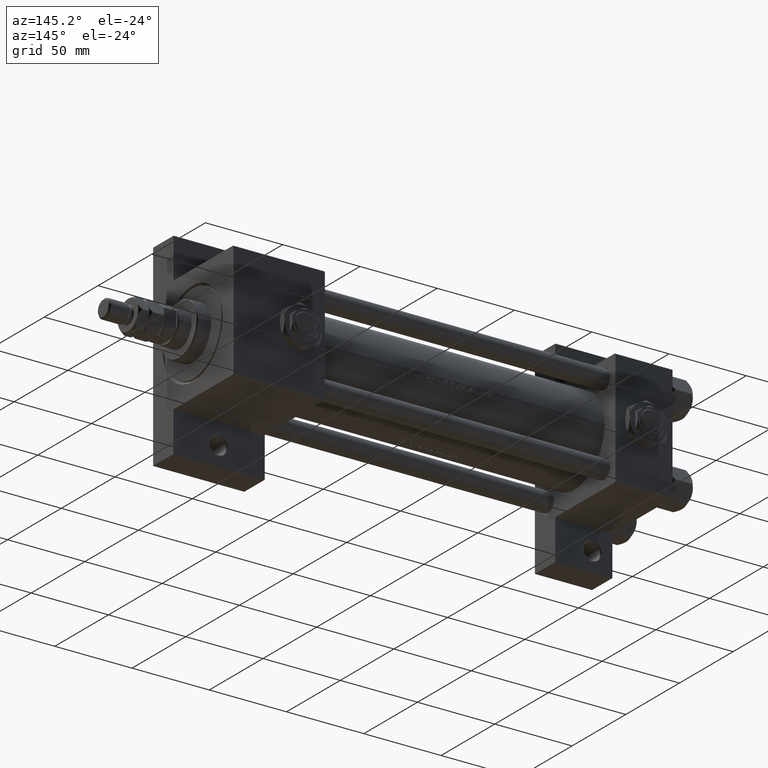
[diagram: clean part render]
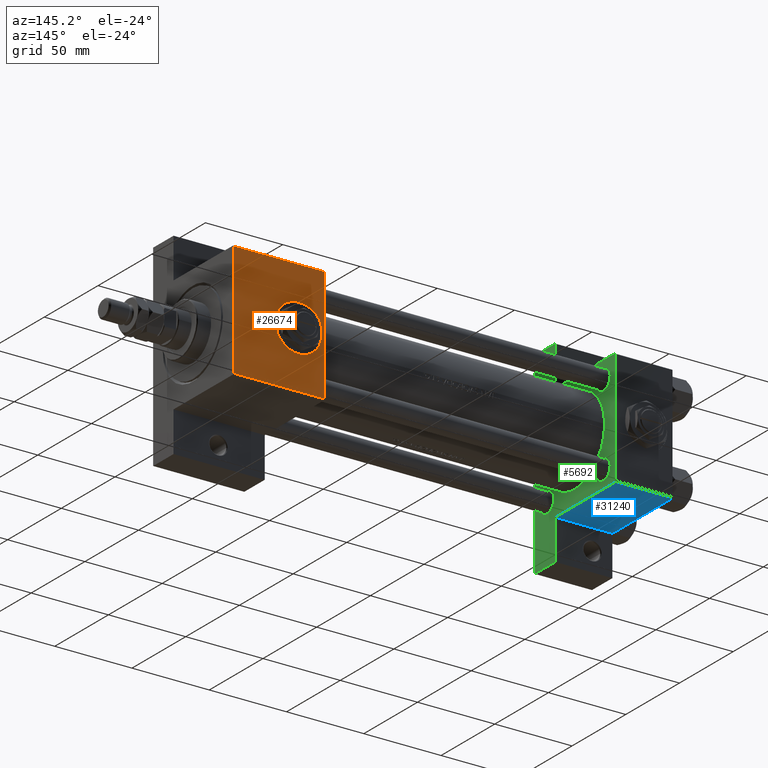
[diagram: same view with three faces highlighted in distinct colors, each labeled with its STEP entity id]
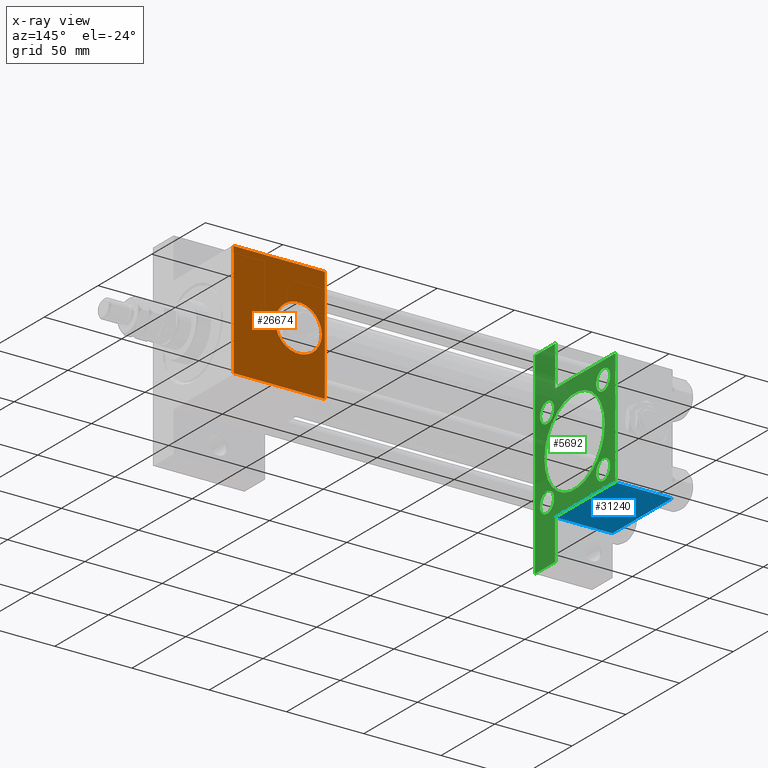
[diagram: x-ray of the same camera — body ghosted, the three highlighted faces saturated]
A machine part, auxiliary view with three faces highlighted in distinct colors.
The next image is the same camera in x-ray (body ghosted, the three faces saturated) — at least one of them is partly hidden behind the body in this view.
Their STEP definitions:

[orange] entity #26674 — the highlighted planar face has unit normal (0, -1, -0).
#245 = DIRECTION ( 'NONE',  ( 1.000000000000000000, 0.000000000000000000, 0.000000000000000000 ) ) ;
#636 = VERTEX_POINT ( 'NONE', #3064 ) ;
#1659 = EDGE_LOOP ( 'NONE', ( #42610, #9571, #27502, #6491 ) ) ;
#2754 = EDGE_CURVE ( 'NONE', #26645, #23286, #10351, .T. ) ;
#2899 = ORIENTED_EDGE ( 'NONE', *, *, #34275, .F. ) ;
#3064 = CARTESIAN_POINT ( 'NONE',  ( 284.0000000000000568, 36.99999999999994316, 37.49999999999999289 ) ) ;
#6491 = ORIENTED_EDGE ( 'NONE', *, *, #30330, .T. ) ;
#7207 = LINE ( 'NONE', #19254, #42934 ) ;
#7987 = EDGE_CURVE ( 'NONE', #636, #42467, #26623, .T. ) ;
#8096 = DIRECTION ( 'NONE',  ( 0.000000000000000000, 1.850371707708594316E-16, -1.000000000000000000 ) ) ;
#9556 = CARTESIAN_POINT ( 'NONE',  ( 225.0000000000000000, 37.50000000000000000, 37.49999999999999289 ) ) ;
#9571 = ORIENTED_EDGE ( 'NONE', *, *, #34855, .T. ) ;
#10351 = CIRCLE ( 'NONE', #26715, 15.00000000000001421 ) ;
#11967 = AXIS2_PLACEMENT_3D ( 'NONE', #35314, #28141, #245 ) ;
#12151 = CARTESIAN_POINT ( 'NONE',  ( 284.0000000000000568, -36.99999999999997158, 37.49999999999997868 ) ) ;
#12852 = EDGE_CURVE ( 'NONE', #39180, #18394, #18001, .T. ) ;
#18001 = LINE ( 'NONE', #9556, #26893 ) ;
#18394 = VERTEX_POINT ( 'NONE', #32672 ) ;
#19254 = CARTESIAN_POINT ( 'NONE',  ( 225.0000000000000000, 36.99999999999994316, 37.49999999999999289 ) ) ;
#20141 = CARTESIAN_POINT ( 'NONE',  ( 284.0000000000000568, 37.50000000000000000, 37.49999999999999289 ) ) ;
#22506 = ORIENTED_EDGE ( 'NONE', *, *, #2754, .F. ) ;
#23022 = LINE ( 'NONE', #30952, #27368 ) ;
#23286 = VERTEX_POINT ( 'NONE', #36150 ) ;
#24740 = CARTESIAN_POINT ( 'NONE',  ( 257.0000000000000000, -6.938893903907226011E-15, 37.49999999999998579 ) ) ;
#24943 = DIRECTION ( 'NONE',  ( 0.000000000000000000, -1.000000000000000000, -1.850371707708594316E-16 ) ) ;
#26623 = LINE ( 'NONE', #49614, #43191 ) ;
#26645 = VERTEX_POINT ( 'NONE', #24740 ) ;
#26674 = ADVANCED_FACE ( 'NONE', ( #28560, #44146 ), #40313, .F. ) ;
#26715 = AXIS2_PLACEMENT_3D ( 'NONE', #35989, #35235, #43396 ) ;
#26893 = VECTOR ( 'NONE', #24943, 1000.000000000000000 ) ;
#27368 = VECTOR ( 'NONE', #50112, 1000.000000000000000 ) ;
#27502 = ORIENTED_EDGE ( 'NONE', *, *, #12852, .T. ) ;
#28141 = DIRECTION ( 'NONE',  ( 0.000000000000000000, 0.000000000000000000, 1.000000000000000000 ) ) ;
#28560 = FACE_BOUND ( 'NONE', #37875, .T. ) ;
#30330 = EDGE_CURVE ( 'NONE', #18394, #42467, #23022, .T. ) ;
#30952 = CARTESIAN_POINT ( 'NONE',  ( 284.0000000000000568, -36.99999999999997158, 37.49999999999997868 ) ) ;
#31033 = DIRECTION ( 'NONE',  ( -1.000000000000000000, 0.000000000000000000, 0.000000000000000000 ) ) ;
#31906 = DIRECTION ( 'NONE',  ( 0.000000000000000000, 1.000000000000000000, 1.850371707708594316E-16 ) ) ;
#32672 = CARTESIAN_POINT ( 'NONE',  ( 225.0000000000000000, -36.99999999999997158, 37.49999999999997868 ) ) ;
#34275 = EDGE_CURVE ( 'NONE', #23286, #26645, #44521, .T. ) ;
#34855 = EDGE_CURVE ( 'NONE', #636, #39180, #7207, .T. ) ;
#35235 = DIRECTION ( 'NONE',  ( 0.000000000000000000, 0.000000000000000000, 1.000000000000000000 ) ) ;
#35314 = CARTESIAN_POINT ( 'NONE',  ( 242.0000000000000000, -6.938893903907226011E-15, 37.49999999999998579 ) ) ;
#35989 = CARTESIAN_POINT ( 'NONE',  ( 242.0000000000000000, -6.938893903907226011E-15, 37.49999999999998579 ) ) ;
#36150 = CARTESIAN_POINT ( 'NONE',  ( 226.9999999999999716, -5.101923705186191689E-15, 37.49999999999998579 ) ) ;
#37385 = CARTESIAN_POINT ( 'NONE',  ( 225.0000000000000000, 36.99999999999994316, 37.49999999999999289 ) ) ;
#37875 = EDGE_LOOP ( 'NONE', ( #22506, #2899 ) ) ;
#39180 = VERTEX_POINT ( 'NONE', #37385 ) ;
#40313 = PLANE ( 'NONE',  #42761 ) ;
#42467 = VERTEX_POINT ( 'NONE', #12151 ) ;
#42610 = ORIENTED_EDGE ( 'NONE', *, *, #7987, .F. ) ;
#42761 = AXIS2_PLACEMENT_3D ( 'NONE', #20141, #8096, #31906 ) ;
#42934 = VECTOR ( 'NONE', #31033, 1000.000000000000000 ) ;
#43191 = VECTOR ( 'NONE', #43479, 1000.000000000000000 ) ;
#43396 = DIRECTION ( 'NONE',  ( 1.000000000000000000, 0.000000000000000000, 0.000000000000000000 ) ) ;
#43479 = DIRECTION ( 'NONE',  ( 0.000000000000000000, -1.000000000000000000, -1.850371707708594316E-16 ) ) ;
#44146 = FACE_OUTER_BOUND ( 'NONE', #1659, .T. ) ;
#44521 = CIRCLE ( 'NONE', #11967, 15.00000000000001421 ) ;
#49614 = CARTESIAN_POINT ( 'NONE',  ( 284.0000000000000568, 37.50000000000000000, 37.49999999999999289 ) ) ;
#50112 = DIRECTION ( 'NONE',  ( 1.000000000000000000, 0.000000000000000000, 0.000000000000000000 ) ) ;

[blue] entity #31240 — the highlighted planar face has unit normal (0, 0, -1).
#3016 = CARTESIAN_POINT ( 'NONE',  ( 0.000000000000000000, 37.49999999999999289, 37.00000000000000000 ) ) ;
#3390 = PLANE ( 'NONE',  #14324 ) ;
#3403 = CARTESIAN_POINT ( 'NONE',  ( 0.000000000000000000, 37.49999999999999289, 37.50000000000000000 ) ) ;
#3604 = VERTEX_POINT ( 'NONE', #41656 ) ;
#3696 = LINE ( 'NONE', #31345, #8150 ) ;
#5565 = DIRECTION ( 'NONE',  ( 1.000000000000000000, -3.750753461571474945E-16, 0.000000000000000000 ) ) ;
#6773 = CARTESIAN_POINT ( 'NONE',  ( 37.00000000000000000, 37.49999999999999289, 37.00000000000000000 ) ) ;
#8150 = VECTOR ( 'NONE', #19840, 1000.000000000000000 ) ;
#8583 = ORIENTED_EDGE ( 'NONE', *, *, #41813, .F. ) ;
#8738 = CARTESIAN_POINT ( 'NONE',  ( 37.00000000000000711, 37.50000000000000711, -18.50000000000000355 ) ) ;
#14324 = AXIS2_PLACEMENT_3D ( 'NONE', #49677, #34610, #30010 ) ;
#15902 = ORIENTED_EDGE ( 'NONE', *, *, #46427, .T. ) ;
#16501 = EDGE_LOOP ( 'NONE', ( #16554, #8583, #15902, #30781 ) ) ;
#16554 = ORIENTED_EDGE ( 'NONE', *, *, #29075, .F. ) ;
#17768 = VECTOR ( 'NONE', #42542, 1000.000000000000000 ) ;
#18304 = DIRECTION ( 'NONE',  ( 1.000000000000000000, 0.000000000000000000, 0.000000000000000000 ) ) ;
#18463 = LINE ( 'NONE', #31763, #44458 ) ;
#18491 = FACE_OUTER_BOUND ( 'NONE', #16501, .T. ) ;
#19840 = DIRECTION ( 'NONE',  ( 0.000000000000000000, 0.000000000000000000, -1.000000000000000000 ) ) ;
#23721 = VECTOR ( 'NONE', #18304, 1000.000000000000000 ) ;
#29075 = EDGE_CURVE ( 'NONE', #33532, #34962, #18463, .T. ) ;
#30010 = DIRECTION ( 'NONE',  ( 0.000000000000000000, -0.000000000000000000, 1.000000000000000000 ) ) ;
#30781 = ORIENTED_EDGE ( 'NONE', *, *, #49559, .T. ) ;
#31240 = ADVANCED_FACE ( 'NONE', ( #18491 ), #3390, .T. ) ;
#31345 = CARTESIAN_POINT ( 'NONE',  ( 37.00000000000000000, 37.49999999999999289, 37.50000000000000000 ) ) ;
#31763 = CARTESIAN_POINT ( 'NONE',  ( 8.470280871287256020E-15, 37.50000000000002842, -18.49999999999999645 ) ) ;
#32885 = VERTEX_POINT ( 'NONE', #3016 ) ;
#33532 = VERTEX_POINT ( 'NONE', #45606 ) ;
#34610 = DIRECTION ( 'NONE',  ( -0.000000000000000000, 1.000000000000000000, 0.000000000000000000 ) ) ;
#34962 = VERTEX_POINT ( 'NONE', #8738 ) ;
#41656 = CARTESIAN_POINT ( 'NONE',  ( 37.00000000000000000, 37.49999999999999289, 37.00000000000000000 ) ) ;
#41813 = EDGE_CURVE ( 'NONE', #32885, #33532, #42278, .T. ) ;
#42278 = LINE ( 'NONE', #3403, #17768 ) ;
#42542 = DIRECTION ( 'NONE',  ( 0.000000000000000000, 0.000000000000000000, -1.000000000000000000 ) ) ;
#44458 = VECTOR ( 'NONE', #5565, 1000.000000000000000 ) ;
#45606 = CARTESIAN_POINT ( 'NONE',  ( 0.000000000000000000, 37.49999999999999289, -18.49999999999999645 ) ) ;
#45653 = LINE ( 'NONE', #6773, #23721 ) ;
#46427 = EDGE_CURVE ( 'NONE', #32885, #3604, #45653, .T. ) ;
#49559 = EDGE_CURVE ( 'NONE', #3604, #34962, #3696, .T. ) ;
#49677 = CARTESIAN_POINT ( 'NONE',  ( 37.00000000000000000, 37.49999999999999289, 37.50000000000000000 ) ) ;

[green] entity #5692 — the highlighted planar face has unit normal (-1, 0, -0).
#686 = VECTOR ( 'NONE', #19664, 1000.000000000000114 ) ;
#755 = VERTEX_POINT ( 'NONE', #20629 ) ;
#792 = ORIENTED_EDGE ( 'NONE', *, *, #46736, .T. ) ;
#964 = DIRECTION ( 'NONE',  ( 0.000000000000000000, 0.000000000000000000, 1.000000000000000000 ) ) ;
#1186 = CARTESIAN_POINT ( 'NONE',  ( 37.00000000000000000, -37.00000000000000711, 37.49999999999999289 ) ) ;
#1230 = ORIENTED_EDGE ( 'NONE', *, *, #6986, .T. ) ;
#1380 = DIRECTION ( 'NONE',  ( 0.000000000000000000, 0.000000000000000000, 1.000000000000000000 ) ) ;
#1710 = EDGE_CURVE ( 'NONE', #26216, #18410, #16069, .T. ) ;
#2755 = CARTESIAN_POINT ( 'NONE',  ( 37.00000000000000000, 26.14999999999999858, 26.15000000000000213 ) ) ;
#2860 = DIRECTION ( 'NONE',  ( -1.000000000000000000, 0.000000000000000000, -0.000000000000000000 ) ) ;
#3005 = DIRECTION ( 'NONE',  ( -1.000000000000000000, 0.000000000000000000, -0.000000000000000000 ) ) ;
#3090 = FACE_BOUND ( 'NONE', #33573, .T. ) ;
#3119 = VERTEX_POINT ( 'NONE', #37150 ) ;
#3229 = VERTEX_POINT ( 'NONE', #41989 ) ;
#3604 = VERTEX_POINT ( 'NONE', #41656 ) ;
#3696 = LINE ( 'NONE', #31345, #8150 ) ;
#3970 = CARTESIAN_POINT ( 'NONE',  ( 37.00000000000001421, 63.50000000000001421, -18.50000000000000355 ) ) ;
#4253 = ORIENTED_EDGE ( 'NONE', *, *, #31815, .T. ) ;
#4922 = DIRECTION ( 'NONE',  ( -1.000000000000000000, 0.000000000000000000, -0.000000000000000000 ) ) ;
#5215 = CARTESIAN_POINT ( 'NONE',  ( 37.00000000000000000, -63.49999999999998579, 26.72167621838007889 ) ) ;
#5641 = DIRECTION ( 'NONE',  ( -1.000000000000000000, 0.000000000000000000, -0.000000000000000000 ) ) ;
#5692 = ADVANCED_FACE ( 'NONE', ( #22552, #38136, #6417, #41215, #3090, #17704 ), #6163, .F. ) ;
#6083 = ORIENTED_EDGE ( 'NONE', *, *, #24663, .F. ) ;
#6163 = PLANE ( 'NONE',  #22728 ) ;
#6182 = EDGE_CURVE ( 'NONE', #34962, #48297, #15235, .T. ) ;
#6222 = VERTEX_POINT ( 'NONE', #38501 ) ;
#6417 = FACE_BOUND ( 'NONE', #43233, .T. ) ;
#6939 = EDGE_CURVE ( 'NONE', #10899, #49371, #13765, .T. ) ;
#6986 = EDGE_CURVE ( 'NONE', #19173, #15327, #44711, .T. ) ;
#6988 = EDGE_CURVE ( 'NONE', #3604, #10899, #49292, .T. ) ;
#7522 = ORIENTED_EDGE ( 'NONE', *, *, #6939, .T. ) ;
#7743 = EDGE_LOOP ( 'NONE', ( #7522, #10833, #1230, #49832, #31068, #6083, #14367, #18146, #33401, #39525 ) ) ;
#8119 = AXIS2_PLACEMENT_3D ( 'NONE', #30507, #2860, #34598 ) ;
#8150 = VECTOR ( 'NONE', #19840, 1000.000000000000000 ) ;
#8153 = CIRCLE ( 'NONE', #26977, 6.499999999999953815 ) ;
#8738 = CARTESIAN_POINT ( 'NONE',  ( 37.00000000000000711, 37.50000000000000711, -18.50000000000000355 ) ) ;
#9108 = LINE ( 'NONE', #27394, #45075 ) ;
#9473 = DIRECTION ( 'NONE',  ( 0.000000000000000000, 0.000000000000000000, 1.000000000000000000 ) ) ;
#9711 = CIRCLE ( 'NONE', #26051, 6.499999999999946709 ) ;
#9826 = DIRECTION ( 'NONE',  ( 0.000000000000000000, 0.000000000000000000, 1.000000000000000000 ) ) ;
#10296 = DIRECTION ( 'NONE',  ( 0.000000000000000000, 0.000000000000000000, 1.000000000000000000 ) ) ;
#10490 = ORIENTED_EDGE ( 'NONE', *, *, #47207, .T. ) ;
#10752 = DIRECTION ( 'NONE',  ( 0.000000000000000000, -1.734723475976806848E-16, -1.000000000000000000 ) ) ;
#10833 = ORIENTED_EDGE ( 'NONE', *, *, #42111, .T. ) ;
#10899 = VERTEX_POINT ( 'NONE', #21195 ) ;
#11723 = VERTEX_POINT ( 'NONE', #24249 ) ;
#12270 = CARTESIAN_POINT ( 'NONE',  ( 37.00000000000001421, 63.50000000000000000, -37.50000000000002132 ) ) ;
#13649 = VECTOR ( 'NONE', #14255, 1000.000000000000114 ) ;
#13765 = LINE ( 'NONE', #37297, #25897 ) ;
#13890 = DIRECTION ( 'NONE',  ( -1.000000000000000000, 0.000000000000000000, -0.000000000000000000 ) ) ;
#13921 = CARTESIAN_POINT ( 'NONE',  ( 37.00000000000000711, 0.000000000000000000, -0.5000000000000004441 ) ) ;
#14255 = DIRECTION ( 'NONE',  ( 0.000000000000000000, -0.7071067811865474617, 0.7071067811865474617 ) ) ;
#14367 = ORIENTED_EDGE ( 'NONE', *, *, #15891, .F. ) ;
#15083 = VERTEX_POINT ( 'NONE', #30921 ) ;
#15235 = LINE ( 'NONE', #3970, #44758 ) ;
#15250 = AXIS2_PLACEMENT_3D ( 'NONE', #43445, #20449, #31957 ) ;
#15327 = VERTEX_POINT ( 'NONE', #23196 ) ;
#15754 = CARTESIAN_POINT ( 'NONE',  ( 37.00000000000000000, -26.14999999999999147, 26.15000000000000924 ) ) ;
#15891 = EDGE_CURVE ( 'NONE', #48297, #45840, #22548, .T. ) ;
#16069 = CIRCLE ( 'NONE', #15250, 28.00000000000000000 ) ;
#16078 = CARTESIAN_POINT ( 'NONE',  ( 37.00000000000000000, -37.50000000000000711, 36.99999999999999289 ) ) ;
#16699 = DIRECTION ( 'NONE',  ( 0.000000000000000000, 0.000000000000000000, 1.000000000000000000 ) ) ;
#16843 = CIRCLE ( 'NONE', #20934, 6.499999999999953815 ) ;
#17008 = DIRECTION ( 'NONE',  ( -1.000000000000000000, 0.000000000000000000, -0.000000000000000000 ) ) ;
#17418 = CARTESIAN_POINT ( 'NONE',  ( 37.00000000000000000, -26.14999999999999147, -26.15000000000000924 ) ) ;
#17487 = LINE ( 'NONE', #5215, #35926 ) ;
#17704 = FACE_OUTER_BOUND ( 'NONE', #7743, .T. ) ;
#18031 = VERTEX_POINT ( 'NONE', #33338 ) ;
#18146 = ORIENTED_EDGE ( 'NONE', *, *, #6182, .F. ) ;
#18160 = ORIENTED_EDGE ( 'NONE', *, *, #48632, .T. ) ;
#18410 = VERTEX_POINT ( 'NONE', #48244 ) ;
#18627 = DIRECTION ( 'NONE',  ( 0.000000000000000000, 0.000000000000000000, 1.000000000000000000 ) ) ;
#18709 = CARTESIAN_POINT ( 'NONE',  ( 37.00000000000000000, 0.000000000000000000, 0.000000000000000000 ) ) ;
#18820 = DIRECTION ( 'NONE',  ( 2.668805347656626678E-16, 1.000000000000000000, 0.000000000000000000 ) ) ;
#19036 = EDGE_LOOP ( 'NONE', ( #10490, #792 ) ) ;
#19173 = VERTEX_POINT ( 'NONE', #19525 ) ;
#19276 = CIRCLE ( 'NONE', #42103, 28.00000000000000000 ) ;
#19284 = EDGE_CURVE ( 'NONE', #15083, #43131, #25507, .T. ) ;
#19403 = DIRECTION ( 'NONE',  ( -1.000000000000000000, 0.000000000000000000, -0.000000000000000000 ) ) ;
#19457 = EDGE_CURVE ( 'NONE', #3119, #15327, #9108, .T. ) ;
#19525 = CARTESIAN_POINT ( 'NONE',  ( 37.00000000000000000, -37.50000000000000711, 36.99999999999999289 ) ) ;
#19664 = DIRECTION ( 'NONE',  ( -0.000000000000000000, -0.7071067811865474617, -0.7071067811865474617 ) ) ;
#19840 = DIRECTION ( 'NONE',  ( 0.000000000000000000, 0.000000000000000000, -1.000000000000000000 ) ) ;
#20356 = CARTESIAN_POINT ( 'NONE',  ( 37.00000000000000000, 26.14999999999999858, 26.15000000000000213 ) ) ;
#20449 = DIRECTION ( 'NONE',  ( 1.000000000000000000, -0.000000000000000000, 0.000000000000000000 ) ) ;
#20629 = CARTESIAN_POINT ( 'NONE',  ( 37.00000000000000000, 26.14999999999999858, -32.64999999999994884 ) ) ;
#20632 = ORIENTED_EDGE ( 'NONE', *, *, #37324, .F. ) ;
#20934 = AXIS2_PLACEMENT_3D ( 'NONE', #2755, #3005, #18627 ) ;
#21195 = CARTESIAN_POINT ( 'NONE',  ( 37.00000000000000000, 36.99999999999999289, 37.50000000000000000 ) ) ;
#21206 = CIRCLE ( 'NONE', #8119, 6.499999999999953815 ) ;
#21966 = CARTESIAN_POINT ( 'NONE',  ( 37.00000000000000000, -37.50000000000000711, 37.49999999999999289 ) ) ;
#22548 = LINE ( 'NONE', #38131, #22915 ) ;
#22552 = FACE_BOUND ( 'NONE', #46208, .T. ) ;
#22728 = AXIS2_PLACEMENT_3D ( 'NONE', #18709, #34317, #44797 ) ;
#22915 = VECTOR ( 'NONE', #10752, 1000.000000000000000 ) ;
#23196 = CARTESIAN_POINT ( 'NONE',  ( 37.00000000000000000, -37.50000000000000000, -18.50000000000000355 ) ) ;
#24249 = CARTESIAN_POINT ( 'NONE',  ( 37.00000000000000000, 26.14999999999999858, 19.65000000000005187 ) ) ;
#24663 = EDGE_CURVE ( 'NONE', #45840, #6222, #40484, .T. ) ;
#24909 = DIRECTION ( 'NONE',  ( 0.000000000000000000, -1.000000000000000000, -9.251858538542972814E-17 ) ) ;
#25507 = CIRCLE ( 'NONE', #38560, 6.499999999999946709 ) ;
#25897 = VECTOR ( 'NONE', #29135, 1000.000000000000000 ) ;
#26051 = AXIS2_PLACEMENT_3D ( 'NONE', #46749, #19403, #964 ) ;
#26216 = VERTEX_POINT ( 'NONE', #45304 ) ;
#26928 = VERTEX_POINT ( 'NONE', #39257 ) ;
#26977 = AXIS2_PLACEMENT_3D ( 'NONE', #20356, #17008, #10296 ) ;
#27394 = CARTESIAN_POINT ( 'NONE',  ( 37.00000000000000000, -63.49999999999998579, -18.50000000000000355 ) ) ;
#27705 = VERTEX_POINT ( 'NONE', #42746 ) ;
#28239 = AXIS2_PLACEMENT_3D ( 'NONE', #15754, #13890, #37423 ) ;
#28738 = CARTESIAN_POINT ( 'NONE',  ( 37.00000000000000000, 37.49999999999999289, -37.50000000000000000 ) ) ;
#29135 = DIRECTION ( 'NONE',  ( 0.000000000000000000, -1.000000000000000000, -9.251858538542971581E-17 ) ) ;
#29651 = CARTESIAN_POINT ( 'NONE',  ( 37.00000000000000000, -26.14999999999999147, -19.65000000000006253 ) ) ;
#30118 = CARTESIAN_POINT ( 'NONE',  ( 37.00000000000001421, 63.50000000000000000, -18.50000000000000355 ) ) ;
#30233 = EDGE_CURVE ( 'NONE', #43131, #15083, #47784, .T. ) ;
#30507 = CARTESIAN_POINT ( 'NONE',  ( 37.00000000000000000, -26.14999999999999147, 26.15000000000000924 ) ) ;
#30921 = CARTESIAN_POINT ( 'NONE',  ( 37.00000000000000000, -26.14999999999999147, -32.64999999999995595 ) ) ;
#31068 = ORIENTED_EDGE ( 'NONE', *, *, #49736, .T. ) ;
#31132 = EDGE_CURVE ( 'NONE', #27705, #3229, #50268, .T. ) ;
#31345 = CARTESIAN_POINT ( 'NONE',  ( 37.00000000000000000, 37.49999999999999289, 37.50000000000000000 ) ) ;
#31815 = EDGE_CURVE ( 'NONE', #18031, #11723, #16843, .T. ) ;
#31957 = DIRECTION ( 'NONE',  ( 0.000000000000000000, 0.000000000000000000, 1.000000000000000000 ) ) ;
#32811 = ORIENTED_EDGE ( 'NONE', *, *, #19284, .T. ) ;
#32865 = CARTESIAN_POINT ( 'NONE',  ( 37.00000000000000000, 26.14999999999999858, -26.15000000000000213 ) ) ;
#33127 = DIRECTION ( 'NONE',  ( 1.000000000000000000, -0.000000000000000000, 0.000000000000000000 ) ) ;
#33338 = CARTESIAN_POINT ( 'NONE',  ( 37.00000000000000000, 26.14999999999999858, 32.64999999999995595 ) ) ;
#33401 = ORIENTED_EDGE ( 'NONE', *, *, #49559, .F. ) ;
#33573 = EDGE_LOOP ( 'NONE', ( #20632, #38727 ) ) ;
#33726 = DIRECTION ( 'NONE',  ( 0.000000000000000000, 9.251858538542971581E-17, -1.000000000000000000 ) ) ;
#34308 = AXIS2_PLACEMENT_3D ( 'NONE', #32865, #48433, #1380 ) ;
#34317 = DIRECTION ( 'NONE',  ( -1.000000000000000000, 0.000000000000000000, -0.000000000000000000 ) ) ;
#34598 = DIRECTION ( 'NONE',  ( 0.000000000000000000, 0.000000000000000000, 1.000000000000000000 ) ) ;
#34962 = VERTEX_POINT ( 'NONE', #8738 ) ;
#35926 = VECTOR ( 'NONE', #47922, 1000.000000000000000 ) ;
#36966 = ORIENTED_EDGE ( 'NONE', *, *, #46757, .T. ) ;
#37150 = CARTESIAN_POINT ( 'NONE',  ( 37.00000000000000000, -63.50000000000000000, -18.50000000000000355 ) ) ;
#37297 = CARTESIAN_POINT ( 'NONE',  ( 37.00000000000000000, 37.49999999999999289, 37.50000000000000000 ) ) ;
#37324 = EDGE_CURVE ( 'NONE', #18410, #26216, #19276, .T. ) ;
#37423 = DIRECTION ( 'NONE',  ( 0.000000000000000000, 0.000000000000000000, 1.000000000000000000 ) ) ;
#38131 = CARTESIAN_POINT ( 'NONE',  ( 37.00000000000001421, 63.50000000000001421, 26.72167621838005047 ) ) ;
#38136 = FACE_BOUND ( 'NONE', #19036, .T. ) ;
#38435 = ORIENTED_EDGE ( 'NONE', *, *, #30233, .T. ) ;
#38501 = CARTESIAN_POINT ( 'NONE',  ( 37.00000000000000000, -63.50000000000000000, -37.49999999999999289 ) ) ;
#38560 = AXIS2_PLACEMENT_3D ( 'NONE', #43785, #4922, #16699 ) ;
#38727 = ORIENTED_EDGE ( 'NONE', *, *, #1710, .F. ) ;
#39257 = CARTESIAN_POINT ( 'NONE',  ( 37.00000000000000000, 26.14999999999999858, -19.65000000000005542 ) ) ;
#39525 = ORIENTED_EDGE ( 'NONE', *, *, #6988, .T. ) ;
#39837 = LINE ( 'NONE', #16078, #686 ) ;
#40484 = LINE ( 'NONE', #28738, #47579 ) ;
#40635 = CARTESIAN_POINT ( 'NONE',  ( 37.00000000000000000, 36.99999999999999289, 37.50000000000000000 ) ) ;
#41215 = FACE_BOUND ( 'NONE', #49257, .T. ) ;
#41656 = CARTESIAN_POINT ( 'NONE',  ( 37.00000000000000000, 37.49999999999999289, 37.00000000000000000 ) ) ;
#41989 = CARTESIAN_POINT ( 'NONE',  ( 37.00000000000000000, -26.14999999999999147, 32.64999999999996305 ) ) ;
#42103 = AXIS2_PLACEMENT_3D ( 'NONE', #13921, #33127, #9826 ) ;
#42111 = EDGE_CURVE ( 'NONE', #49371, #19173, #39837, .T. ) ;
#42746 = CARTESIAN_POINT ( 'NONE',  ( 37.00000000000000000, -26.14999999999999147, 19.65000000000005542 ) ) ;
#42867 = AXIS2_PLACEMENT_3D ( 'NONE', #17418, #5641, #9473 ) ;
#43061 = VECTOR ( 'NONE', #33726, 1000.000000000000000 ) ;
#43131 = VERTEX_POINT ( 'NONE', #29651 ) ;
#43233 = EDGE_LOOP ( 'NONE', ( #48407, #18160 ) ) ;
#43445 = CARTESIAN_POINT ( 'NONE',  ( 37.00000000000000711, 0.000000000000000000, -0.5000000000000004441 ) ) ;
#43785 = CARTESIAN_POINT ( 'NONE',  ( 37.00000000000000000, -26.14999999999999147, -26.15000000000000924 ) ) ;
#44711 = LINE ( 'NONE', #21966, #43061 ) ;
#44758 = VECTOR ( 'NONE', #18820, 1000.000000000000000 ) ;
#44797 = DIRECTION ( 'NONE',  ( -0.000000000000000000, 0.000000000000000000, 1.000000000000000000 ) ) ;
#45075 = VECTOR ( 'NONE', #46039, 1000.000000000000000 ) ;
#45304 = CARTESIAN_POINT ( 'NONE',  ( 37.00000000000000711, 3.429011037612589276E-15, -28.50000000000000000 ) ) ;
#45840 = VERTEX_POINT ( 'NONE', #12270 ) ;
#46039 = DIRECTION ( 'NONE',  ( -0.000000000000000000, 1.000000000000000000, 0.000000000000000000 ) ) ;
#46208 = EDGE_LOOP ( 'NONE', ( #32811, #38435 ) ) ;
#46736 = EDGE_CURVE ( 'NONE', #26928, #755, #48997, .T. ) ;
#46749 = CARTESIAN_POINT ( 'NONE',  ( 37.00000000000000000, 26.14999999999999858, -26.15000000000000213 ) ) ;
#46757 = EDGE_CURVE ( 'NONE', #11723, #18031, #8153, .T. ) ;
#47207 = EDGE_CURVE ( 'NONE', #755, #26928, #9711, .T. ) ;
#47579 = VECTOR ( 'NONE', #24909, 1000.000000000000000 ) ;
#47784 = CIRCLE ( 'NONE', #42867, 6.499999999999946709 ) ;
#47922 = DIRECTION ( 'NONE',  ( 0.000000000000000000, -1.734723475976806848E-16, -1.000000000000000000 ) ) ;
#48244 = CARTESIAN_POINT ( 'NONE',  ( 37.00000000000000711, 0.000000000000000000, 27.50000000000000000 ) ) ;
#48297 = VERTEX_POINT ( 'NONE', #30118 ) ;
#48407 = ORIENTED_EDGE ( 'NONE', *, *, #31132, .T. ) ;
#48433 = DIRECTION ( 'NONE',  ( -1.000000000000000000, 0.000000000000000000, -0.000000000000000000 ) ) ;
#48632 = EDGE_CURVE ( 'NONE', #3229, #27705, #21206, .T. ) ;
#48997 = CIRCLE ( 'NONE', #34308, 6.499999999999946709 ) ;
#49257 = EDGE_LOOP ( 'NONE', ( #36966, #4253 ) ) ;
#49292 = LINE ( 'NONE', #40635, #13649 ) ;
#49371 = VERTEX_POINT ( 'NONE', #1186 ) ;
#49559 = EDGE_CURVE ( 'NONE', #3604, #34962, #3696, .T. ) ;
#49736 = EDGE_CURVE ( 'NONE', #3119, #6222, #17487, .T. ) ;
#49832 = ORIENTED_EDGE ( 'NONE', *, *, #19457, .F. ) ;
#50268 = CIRCLE ( 'NONE', #28239, 6.499999999999953815 ) ;